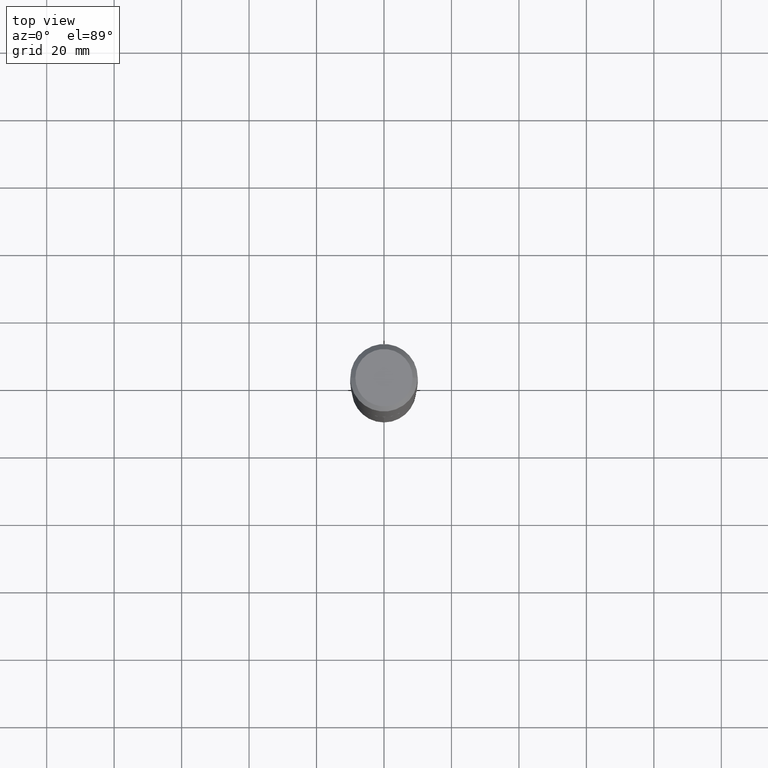
[diagram: clean part render]
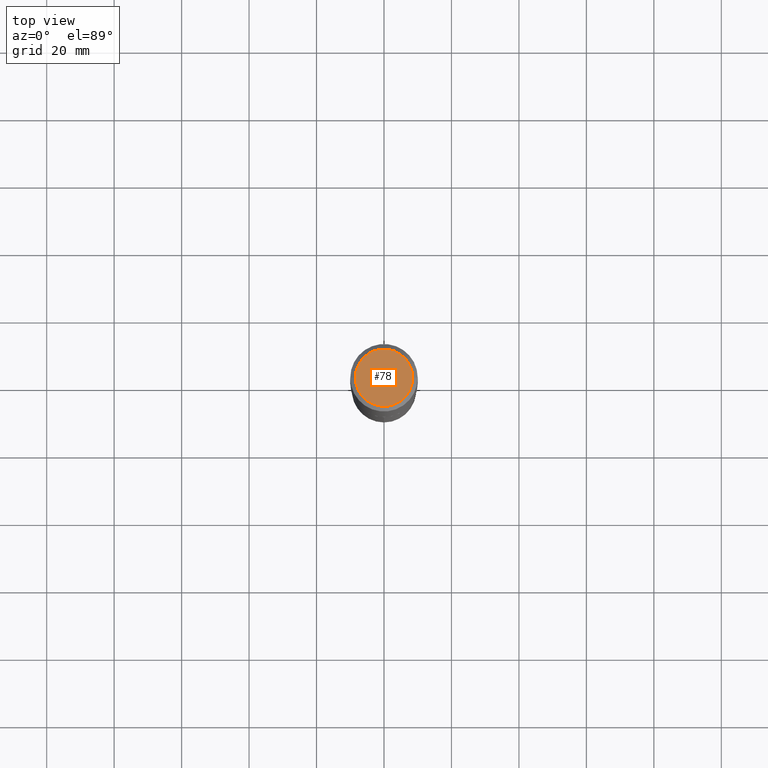
[diagram: same view with one face highlighted and labeled with its STEP entity id]
A machine part, top view. The second image highlights one B-rep face of the part: STEP entity #78.
In plain terms, the highlighted planar face has unit normal (0, -0, -1).
Its self-contained STEP definition (entity closure, byte-faithful):
#4 = EDGE_CURVE ( 'NONE', #206, #464, #399, .T. ) ;
#10 = DIRECTION ( 'NONE',  ( -1.000000000000000000, 6.982962677686265922E-15, -4.876176775795935793E-29 ) ) ;
#31 = AXIS2_PLACEMENT_3D ( 'NONE', #283, #296, #456 ) ;
#74 = CARTESIAN_POINT ( 'NONE',  ( -5.008488096090123536E-47, 7.150793614331970485E-33, 2.048068690724060346E-18 ) ) ;
#78 = ADVANCED_FACE ( 'NONE', ( #411 ), #82, .F. ) ;
#82 = PLANE ( 'NONE',  #107 ) ;
#96 = CARTESIAN_POINT ( 'NONE',  ( -0.3346450000000000258, 2.439908260507010921E-15, 4.096137381431418257E-18 ) ) ;
#101 = EDGE_LOOP ( 'NONE', ( #278, #433 ) ) ;
#107 = AXIS2_PLACEMENT_3D ( 'NONE', #74, #190, #10 ) ;
#126 = CARTESIAN_POINT ( 'NONE',  ( 0.3346450000000000258, -2.601499422326145188E-15, 4.096137381465387809E-18 ) ) ;
#178 = DIRECTION ( 'NONE',  ( -2.445468806185136597E-29, 3.491481338843145583E-15, 1.000000000000000000 ) ) ;
#190 = DIRECTION ( 'NONE',  ( 2.438088387897960049E-29, -3.491481338843145188E-15, -1.000000000000000000 ) ) ;
#206 = VERTEX_POINT ( 'NONE', #126 ) ;
#211 = CIRCLE ( 'NONE', #31, 0.3346450000000000258 ) ;
#213 = CARTESIAN_POINT ( 'NONE',  ( -1.001697619218024707E-46, 1.430158722866394097E-32, 4.096137381448120692E-18 ) ) ;
#278 = ORIENTED_EDGE ( 'NONE', *, *, #431, .T. ) ;
#283 = CARTESIAN_POINT ( 'NONE',  ( -1.001697619218024707E-46, 1.430158722866394097E-32, 4.096137381448120692E-18 ) ) ;
#296 = DIRECTION ( 'NONE',  ( -2.445468806185136597E-29, 3.491481338843145583E-15, 1.000000000000000000 ) ) ;
#301 = AXIS2_PLACEMENT_3D ( 'NONE', #213, #178, #459 ) ;
#399 = CIRCLE ( 'NONE', #301, 0.3346450000000000258 ) ;
#411 = FACE_OUTER_BOUND ( 'NONE', #101, .T. ) ;
#431 = EDGE_CURVE ( 'NONE', #464, #206, #211, .T. ) ;
#433 = ORIENTED_EDGE ( 'NONE', *, *, #4, .T. ) ;
#456 = DIRECTION ( 'NONE',  ( 1.000000000000000000, -6.982962677686267499E-15, 4.876152824003125403E-29 ) ) ;
#459 = DIRECTION ( 'NONE',  ( 1.000000000000000000, -6.982962677686267499E-15, 4.876152824003125403E-29 ) ) ;
#464 = VERTEX_POINT ( 'NONE', #96 ) ;